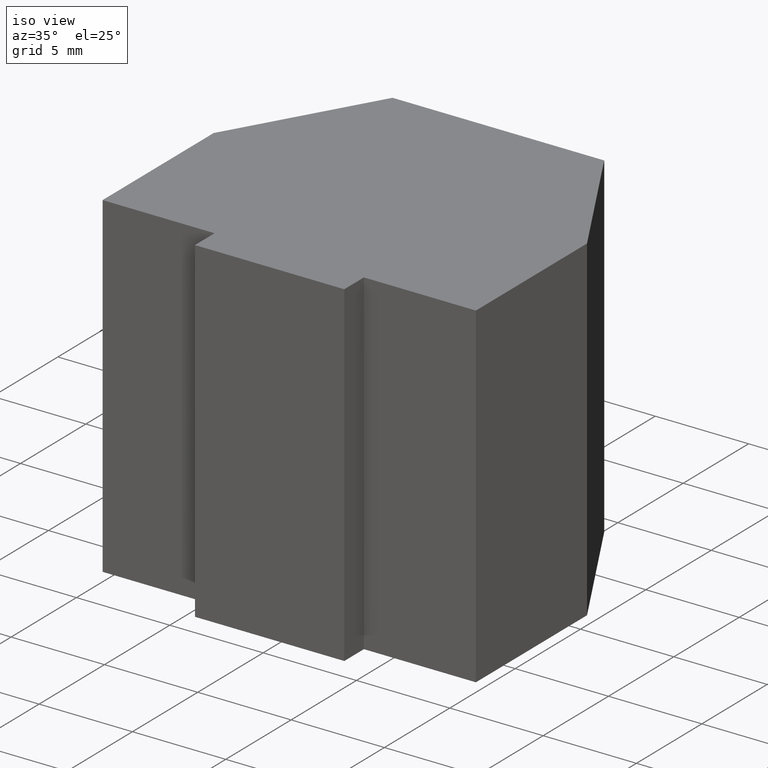
[diagram: clean part render]
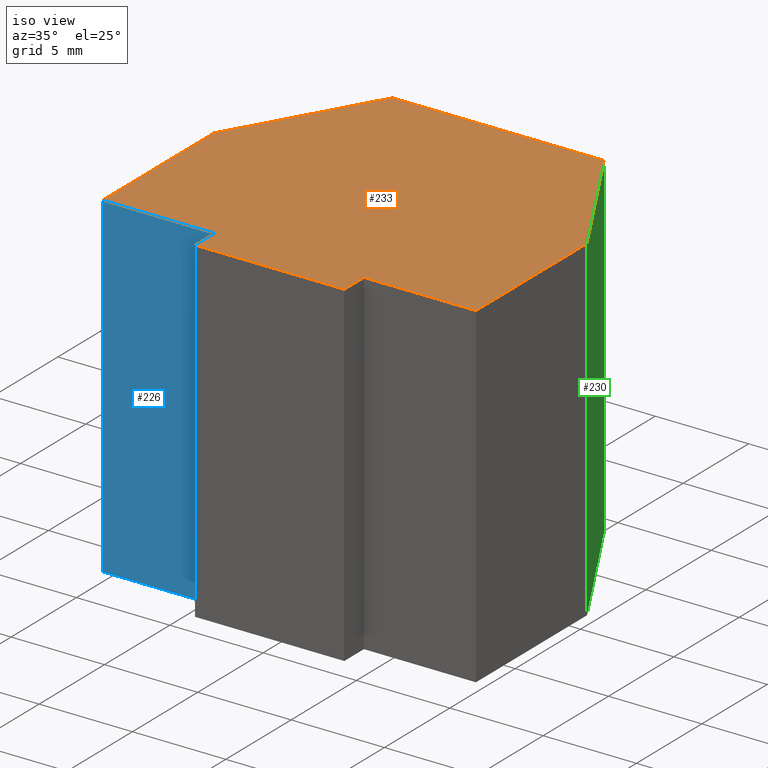
[diagram: same view with three faces highlighted in distinct colors, each labeled with its STEP entity id]
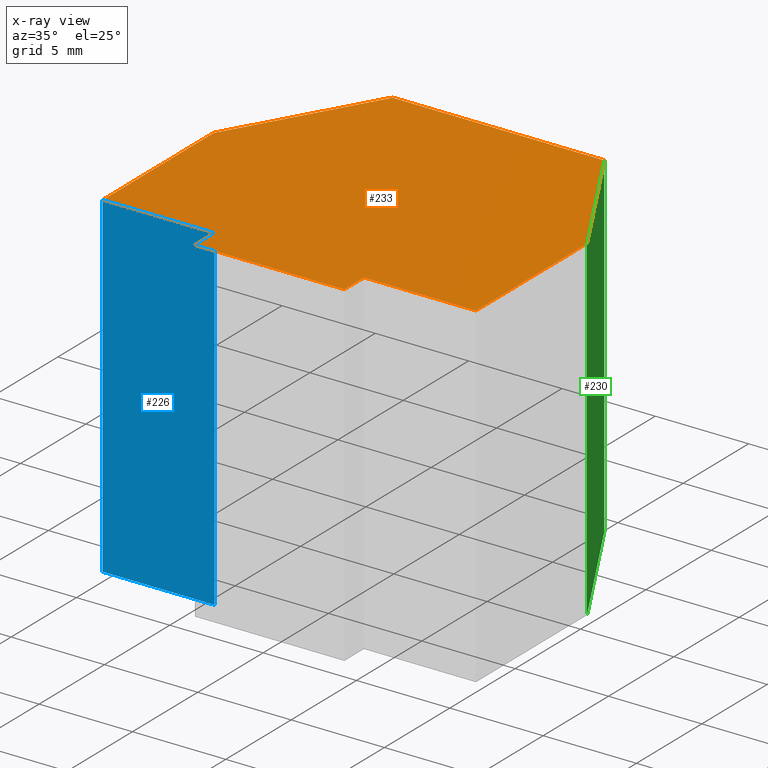
[diagram: x-ray of the same camera — body ghosted, the three highlighted faces saturated]
A machine part, iso view with three faces highlighted in distinct colors.
The next image is the same camera in x-ray (body ghosted, the three faces saturated) — at least one of them is partly hidden behind the body in this view.
Their STEP definitions:

[orange] entity #233 — the highlighted planar face has unit normal (0, 0, 1).
#27=FACE_OUTER_BOUND('',#39,.T.);
#39=EDGE_LOOP('',(#200,#201,#202,#203,#204,#205,#206,#207,#208,#209));
#50=LINE('',#350,#80);
#53=LINE('',#355,#83);
#55=LINE('',#359,#85);
#57=LINE('',#363,#87);
#59=LINE('',#367,#89);
#61=LINE('',#371,#91);
#63=LINE('',#375,#93);
#65=LINE('',#379,#95);
#67=LINE('',#383,#97);
#69=LINE('',#386,#99);
#80=VECTOR('',#285,10.);
#83=VECTOR('',#290,10.);
#85=VECTOR('',#294,10.);
#87=VECTOR('',#298,10.);
#89=VECTOR('',#302,10.);
#91=VECTOR('',#306,10.);
#93=VECTOR('',#310,10.);
#95=VECTOR('',#314,10.);
#97=VECTOR('',#318,10.);
#99=VECTOR('',#322,10.);
#110=VERTEX_POINT('',#348);
#111=VERTEX_POINT('',#349);
#112=VERTEX_POINT('',#354);
#113=VERTEX_POINT('',#358);
#114=VERTEX_POINT('',#362);
#115=VERTEX_POINT('',#366);
#116=VERTEX_POINT('',#370);
#117=VERTEX_POINT('',#374);
#118=VERTEX_POINT('',#378);
#119=VERTEX_POINT('',#382);
#130=EDGE_CURVE('',#110,#111,#50,.T.);
#133=EDGE_CURVE('',#111,#112,#53,.T.);
#135=EDGE_CURVE('',#112,#113,#55,.T.);
#137=EDGE_CURVE('',#113,#114,#57,.T.);
#139=EDGE_CURVE('',#114,#115,#59,.T.);
#141=EDGE_CURVE('',#115,#116,#61,.T.);
#143=EDGE_CURVE('',#116,#117,#63,.T.);
#145=EDGE_CURVE('',#117,#118,#65,.T.);
#147=EDGE_CURVE('',#118,#119,#67,.T.);
#149=EDGE_CURVE('',#119,#110,#69,.T.);
#200=ORIENTED_EDGE('',*,*,#130,.F.);
#201=ORIENTED_EDGE('',*,*,#149,.F.);
#202=ORIENTED_EDGE('',*,*,#147,.F.);
#203=ORIENTED_EDGE('',*,*,#145,.F.);
#204=ORIENTED_EDGE('',*,*,#143,.F.);
#205=ORIENTED_EDGE('',*,*,#141,.F.);
#206=ORIENTED_EDGE('',*,*,#139,.F.);
#207=ORIENTED_EDGE('',*,*,#137,.F.);
#208=ORIENTED_EDGE('',*,*,#135,.F.);
#209=ORIENTED_EDGE('',*,*,#133,.F.);
#221=PLANE('',#268);
#233=ADVANCED_FACE('',(#27),#221,.T.);
#268=AXIS2_PLACEMENT_3D('',#387,#323,#324);
#285=DIRECTION('',(0.,-1.,0.));
#290=DIRECTION('',(-1.,0.,0.));
#294=DIRECTION('',(0.,1.,0.));
#298=DIRECTION('',(-1.,0.,0.));
#302=DIRECTION('',(2.61228946970625E-16,1.,0.));
#306=DIRECTION('',(0.5,0.866025403784439,0.));
#310=DIRECTION('',(1.,0.,0.));
#314=DIRECTION('',(0.5,-0.866025403784439,0.));
#318=DIRECTION('',(2.61228946970625E-16,-1.,0.));
#322=DIRECTION('',(-1.,0.,0.));
#323=DIRECTION('center_axis',(0.,0.,1.));
#324=DIRECTION('ref_axis',(1.,0.,0.));
#348=CARTESIAN_POINT('',(4.,-7.99999999999999,9.));
#349=CARTESIAN_POINT('',(4.,-9.5,9.));
#350=CARTESIAN_POINT('',(4.,-7.99999999999999,9.));
#354=CARTESIAN_POINT('',(-4.,-9.5,9.));
#355=CARTESIAN_POINT('',(4.,-9.5,9.));
#358=CARTESIAN_POINT('',(-4.,-7.99999999999999,9.));
#359=CARTESIAN_POINT('',(-4.,-9.5,9.));
#362=CARTESIAN_POINT('',(-10.,-7.99999999999999,9.));
#363=CARTESIAN_POINT('',(-4.,-7.99999999999999,9.));
#366=CARTESIAN_POINT('',(-10.,0.500000000000007,9.));
#367=CARTESIAN_POINT('',(-10.,-7.99999999999999,9.));
#370=CARTESIAN_POINT('',(-5.6698729810778,8.00000000000001,9.));
#371=CARTESIAN_POINT('',(-10.,0.500000000000007,9.));
#374=CARTESIAN_POINT('',(5.66987298107781,8.00000000000001,9.));
#375=CARTESIAN_POINT('',(-5.6698729810778,8.00000000000001,9.));
#378=CARTESIAN_POINT('',(10.,0.500000000000007,9.));
#379=CARTESIAN_POINT('',(5.66987298107781,8.00000000000001,9.));
#382=CARTESIAN_POINT('',(10.,-7.99999999999999,9.));
#383=CARTESIAN_POINT('',(10.,0.500000000000007,9.));
#386=CARTESIAN_POINT('',(10.,-7.99999999999999,9.));
#387=CARTESIAN_POINT('Origin',(-1.90819582357449E-16,-1.42250963602965,
9.));

[blue] entity #226 — the highlighted planar face has unit normal (0, -1, 0).
#20=FACE_OUTER_BOUND('',#32,.T.);
#32=EDGE_LOOP('',(#172,#173,#174,#175));
#45=LINE('',#339,#75);
#56=LINE('',#360,#86);
#57=LINE('',#363,#87);
#58=LINE('',#364,#88);
#75=VECTOR('',#278,10.);
#86=VECTOR('',#295,10.);
#87=VECTOR('',#298,10.);
#88=VECTOR('',#299,10.);
#105=VERTEX_POINT('',#336);
#106=VERTEX_POINT('',#338);
#113=VERTEX_POINT('',#358);
#114=VERTEX_POINT('',#362);
#125=EDGE_CURVE('',#106,#105,#45,.T.);
#136=EDGE_CURVE('',#113,#105,#56,.T.);
#137=EDGE_CURVE('',#113,#114,#57,.T.);
#138=EDGE_CURVE('',#114,#106,#58,.T.);
#172=ORIENTED_EDGE('',*,*,#137,.T.);
#173=ORIENTED_EDGE('',*,*,#138,.T.);
#174=ORIENTED_EDGE('',*,*,#125,.T.);
#175=ORIENTED_EDGE('',*,*,#136,.F.);
#214=PLANE('',#261);
#226=ADVANCED_FACE('',(#20),#214,.T.);
#261=AXIS2_PLACEMENT_3D('',#361,#296,#297);
#278=DIRECTION('',(1.,0.,0.));
#295=DIRECTION('',(0.,0.,-1.));
#296=DIRECTION('center_axis',(0.,-1.,0.));
#297=DIRECTION('ref_axis',(0.,0.,-1.));
#298=DIRECTION('',(-1.,0.,0.));
#299=DIRECTION('',(0.,0.,-1.));
#336=CARTESIAN_POINT('',(-4.,-7.99999999999999,-9.));
#338=CARTESIAN_POINT('',(-10.,-7.99999999999999,-9.));
#339=CARTESIAN_POINT('',(-4.,-7.99999999999999,-9.));
#358=CARTESIAN_POINT('',(-4.,-7.99999999999999,9.));
#360=CARTESIAN_POINT('',(-4.,-7.99999999999999,0.));
#361=CARTESIAN_POINT('Origin',(-4.,-7.99999999999999,0.));
#362=CARTESIAN_POINT('',(-10.,-7.99999999999999,9.));
#363=CARTESIAN_POINT('',(-4.,-7.99999999999999,9.));
#364=CARTESIAN_POINT('',(-10.,-7.99999999999999,0.));

[green] entity #230 — the highlighted planar face has unit normal (0.866, 0.5, 0).
#24=FACE_OUTER_BOUND('',#36,.T.);
#36=EDGE_LOOP('',(#188,#189,#190,#191));
#49=LINE('',#346,#79);
#64=LINE('',#376,#94);
#65=LINE('',#379,#95);
#66=LINE('',#380,#96);
#79=VECTOR('',#282,10.);
#94=VECTOR('',#311,10.);
#95=VECTOR('',#314,10.);
#96=VECTOR('',#315,10.);
#101=VERTEX_POINT('',#328);
#109=VERTEX_POINT('',#344);
#117=VERTEX_POINT('',#374);
#118=VERTEX_POINT('',#378);
#129=EDGE_CURVE('',#101,#109,#49,.T.);
#144=EDGE_CURVE('',#117,#109,#64,.T.);
#145=EDGE_CURVE('',#117,#118,#65,.T.);
#146=EDGE_CURVE('',#118,#101,#66,.T.);
#188=ORIENTED_EDGE('',*,*,#145,.T.);
#189=ORIENTED_EDGE('',*,*,#146,.T.);
#190=ORIENTED_EDGE('',*,*,#129,.T.);
#191=ORIENTED_EDGE('',*,*,#144,.F.);
#218=PLANE('',#265);
#230=ADVANCED_FACE('',(#24),#218,.T.);
#265=AXIS2_PLACEMENT_3D('',#377,#312,#313);
#282=DIRECTION('',(-0.5,0.866025403784439,0.));
#311=DIRECTION('',(0.,0.,-1.));
#312=DIRECTION('center_axis',(0.866025403784439,0.5,0.));
#313=DIRECTION('ref_axis',(0.,0.,-1.));
#314=DIRECTION('',(0.5,-0.866025403784439,0.));
#315=DIRECTION('',(0.,0.,-1.));
#328=CARTESIAN_POINT('',(10.,0.500000000000007,-9.));
#344=CARTESIAN_POINT('',(5.66987298107781,8.00000000000001,-9.));
#346=CARTESIAN_POINT('',(5.66987298107781,8.00000000000001,-9.));
#374=CARTESIAN_POINT('',(5.66987298107781,8.00000000000001,9.));
#376=CARTESIAN_POINT('',(5.66987298107781,8.00000000000001,0.));
#377=CARTESIAN_POINT('Origin',(5.66987298107781,8.00000000000001,0.));
#378=CARTESIAN_POINT('',(10.,0.500000000000007,9.));
#379=CARTESIAN_POINT('',(5.66987298107781,8.00000000000001,9.));
#380=CARTESIAN_POINT('',(10.,0.500000000000007,0.));